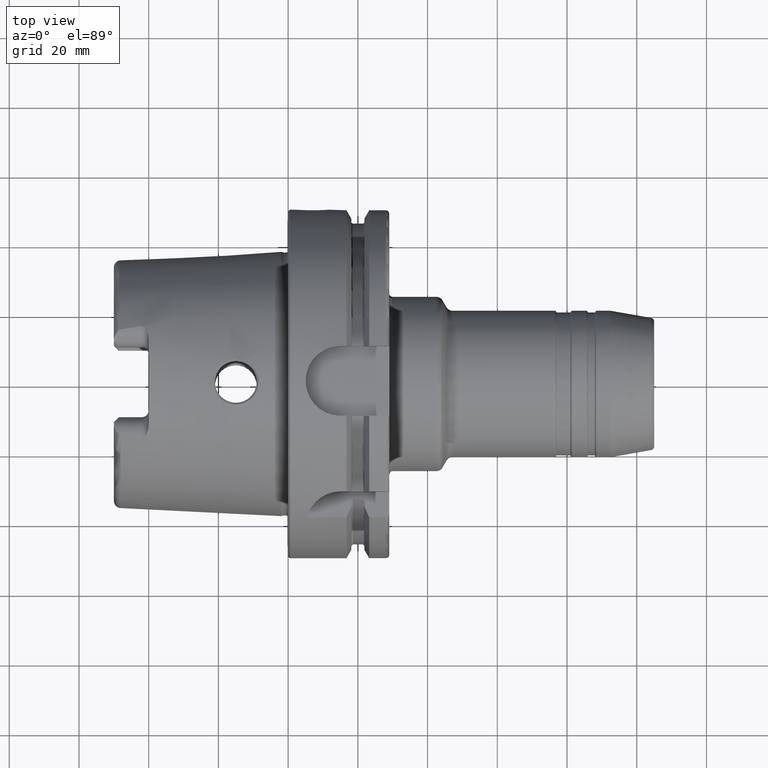
[diagram: clean part render]
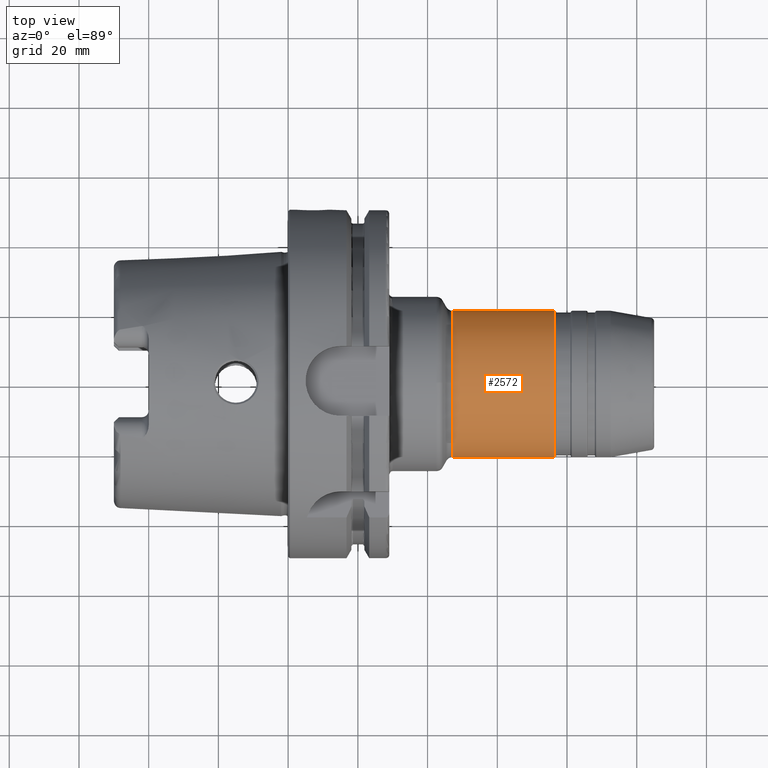
[diagram: same view with one face highlighted and labeled with its STEP entity id]
A machine part, top view. The second image highlights one B-rep face of the part: STEP entity #2572.
In plain terms, the highlighted cylindrical surface (bore or boss wall) has radius 21 mm, axis along (1, 0, 0).
Its self-contained STEP definition (entity closure, byte-faithful):
#170=LINE('',#4094,#285);
#285=VECTOR('',#3250,21.);
#396=CYLINDRICAL_SURFACE('',#2787,21.);
#448=FACE_OUTER_BOUND('',#584,.T.);
#584=EDGE_LOOP('',(#1798,#1799,#1800,#1801,#1802,#1803,#1804,#1805));
#771=CIRCLE('',#2784,21.);
#772=CIRCLE('',#2785,21.);
#773=CIRCLE('',#2786,21.);
#774=CIRCLE('',#2788,21.);
#775=CIRCLE('',#2789,21.);
#776=CIRCLE('',#2790,21.);
#997=VERTEX_POINT('',#4085);
#998=VERTEX_POINT('',#4087);
#999=VERTEX_POINT('',#4089);
#1000=VERTEX_POINT('',#4093);
#1001=VERTEX_POINT('',#4095);
#1002=VERTEX_POINT('',#4097);
#1309=EDGE_CURVE('',#997,#998,#771,.T.);
#1310=EDGE_CURVE('',#998,#999,#772,.T.);
#1311=EDGE_CURVE('',#999,#997,#773,.T.);
#1312=EDGE_CURVE('',#998,#1000,#170,.T.);
#1313=EDGE_CURVE('',#1001,#1000,#774,.T.);
#1314=EDGE_CURVE('',#1002,#1001,#775,.T.);
#1315=EDGE_CURVE('',#1000,#1002,#776,.T.);
#1798=ORIENTED_EDGE('',*,*,#1311,.F.);
#1799=ORIENTED_EDGE('',*,*,#1310,.F.);
#1800=ORIENTED_EDGE('',*,*,#1312,.T.);
#1801=ORIENTED_EDGE('',*,*,#1313,.F.);
#1802=ORIENTED_EDGE('',*,*,#1314,.F.);
#1803=ORIENTED_EDGE('',*,*,#1315,.F.);
#1804=ORIENTED_EDGE('',*,*,#1312,.F.);
#1805=ORIENTED_EDGE('',*,*,#1309,.F.);
#2572=ADVANCED_FACE('',(#448),#396,.T.);
#2784=AXIS2_PLACEMENT_3D('',#4088,#3242,#3243);
#2785=AXIS2_PLACEMENT_3D('',#4090,#3244,#3245);
#2786=AXIS2_PLACEMENT_3D('',#4091,#3246,#3247);
#2787=AXIS2_PLACEMENT_3D('',#4092,#3248,#3249);
#2788=AXIS2_PLACEMENT_3D('',#4096,#3251,#3252);
#2789=AXIS2_PLACEMENT_3D('',#4098,#3253,#3254);
#2790=AXIS2_PLACEMENT_3D('',#4099,#3255,#3256);
#3242=DIRECTION('center_axis',(1.,0.,0.));
#3243=DIRECTION('ref_axis',(0.,-1.,1.83697019872103E-16));
#3244=DIRECTION('center_axis',(1.,0.,0.));
#3245=DIRECTION('ref_axis',(0.,-1.,1.83697019872103E-16));
#3246=DIRECTION('center_axis',(1.,0.,0.));
#3247=DIRECTION('ref_axis',(0.,-1.,1.83697019872103E-16));
#3248=DIRECTION('center_axis',(1.,0.,0.));
#3249=DIRECTION('ref_axis',(0.,1.,0.));
#3250=DIRECTION('',(-1.,0.,0.));
#3251=DIRECTION('center_axis',(-1.,0.,0.));
#3252=DIRECTION('ref_axis',(0.,-1.,1.83697019872103E-16));
#3253=DIRECTION('center_axis',(-1.,0.,0.));
#3254=DIRECTION('ref_axis',(0.,-1.,1.83697019872103E-16));
#3255=DIRECTION('center_axis',(-1.,0.,0.));
#3256=DIRECTION('ref_axis',(0.,-1.,1.83697019872103E-16));
#4085=CARTESIAN_POINT('',(76.4803847577294,-2.57175827820944E-15,21.));
#4087=CARTESIAN_POINT('',(76.4803847577294,-21.,-2.57175827820944E-15));
#4088=CARTESIAN_POINT('Origin',(76.4803847577294,0.,0.));
#4089=CARTESIAN_POINT('',(76.4803847577294,21.,-1.28587913910472E-15));
#4090=CARTESIAN_POINT('Origin',(76.4803847577294,0.,0.));
#4091=CARTESIAN_POINT('Origin',(76.4803847577294,0.,0.));
#4092=CARTESIAN_POINT('Origin',(61.3556624327026,0.,0.));
#4093=CARTESIAN_POINT('',(47.1547005383792,-21.,-2.57175827820944E-15));
#4094=CARTESIAN_POINT('',(61.3556624327026,-21.,-2.57175827820944E-15));
#4095=CARTESIAN_POINT('',(47.1547005383792,21.,-6.4293956955236E-15));
#4096=CARTESIAN_POINT('Origin',(47.1547005383792,0.,0.));
#4097=CARTESIAN_POINT('',(47.1547005383792,-2.57175827820944E-15,21.));
#4098=CARTESIAN_POINT('Origin',(47.1547005383792,0.,0.));
#4099=CARTESIAN_POINT('Origin',(47.1547005383792,0.,0.));